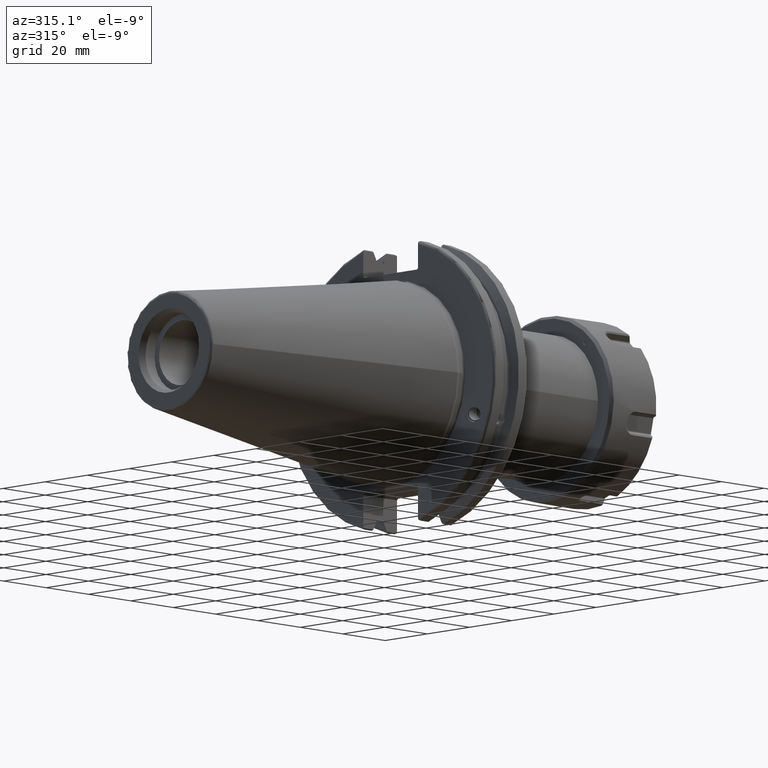
[diagram: clean part render]
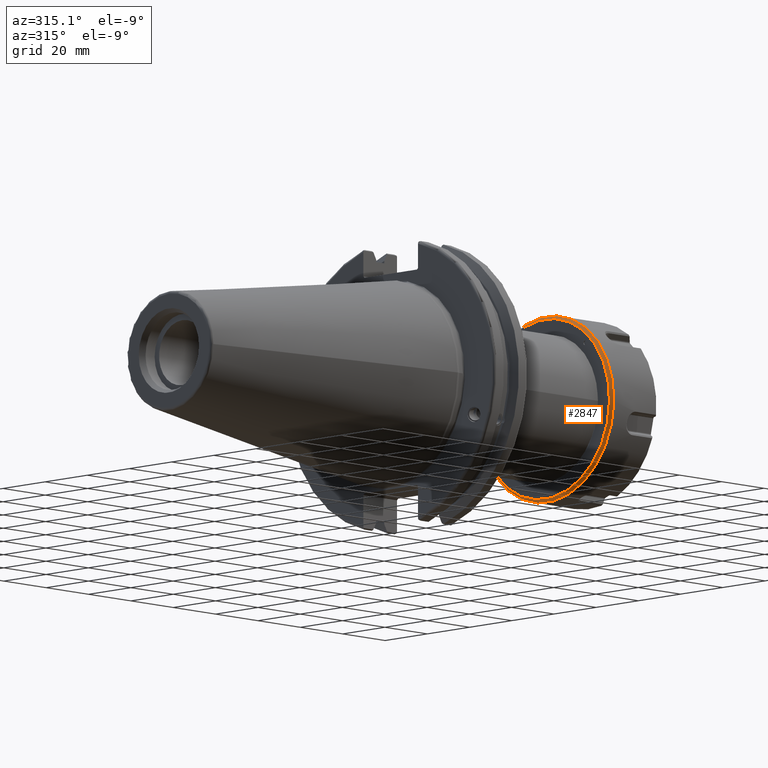
[diagram: same view with one face highlighted and labeled with its STEP entity id]
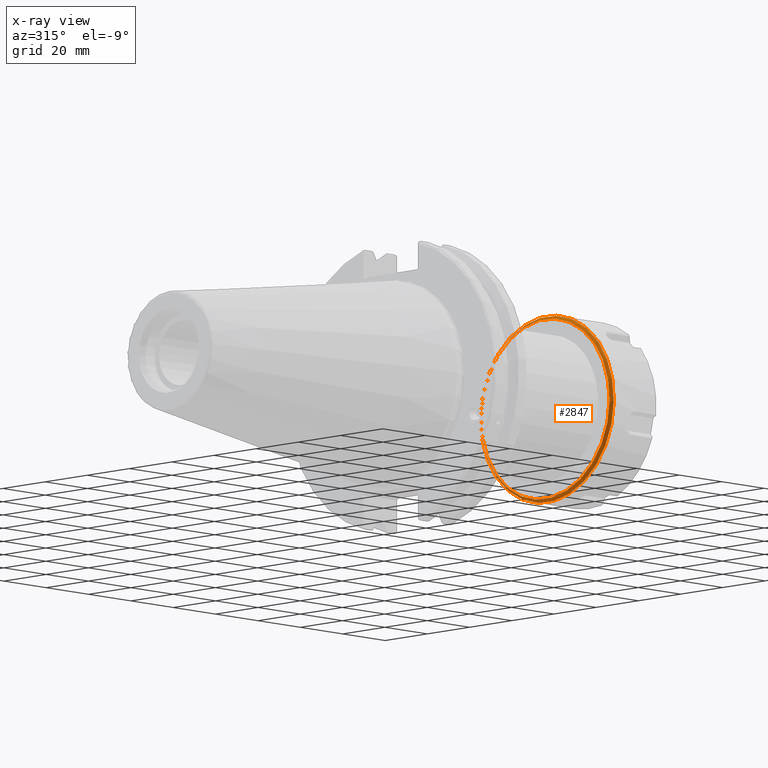
[diagram: x-ray of the same camera — body ghosted, the highlighted face saturated]
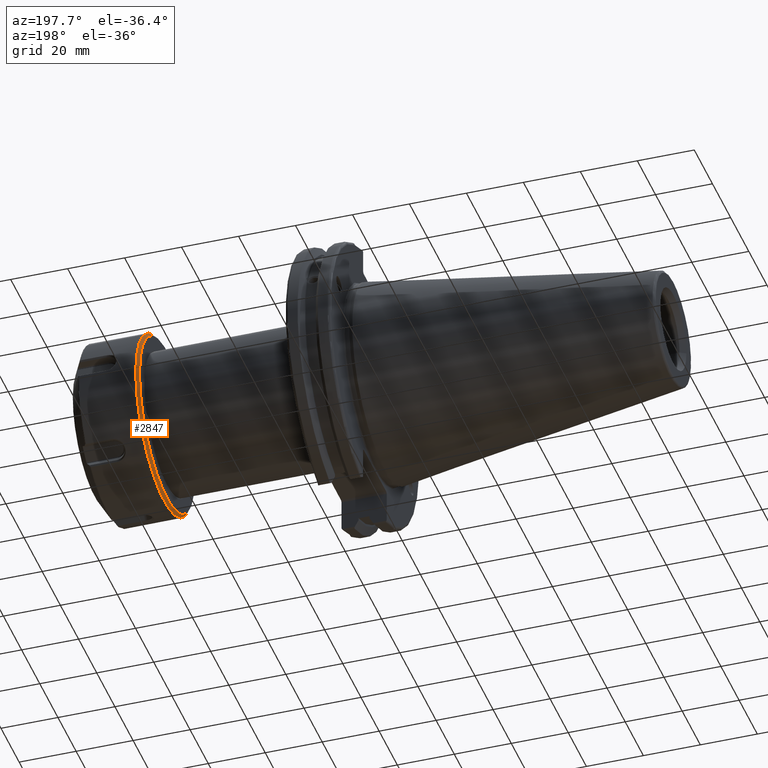
[diagram: same view with one face highlighted and labeled with its STEP entity id]
A machine part, auxiliary view. The second image highlights one B-rep face of the part: STEP entity #2847.
The next image is the same camera in x-ray: the body ghosted, the highlighted face saturated — about 4% of this face is hidden behind the body in this view.
A second angle (auxiliary view) of the same face is appended — the face is thin or edge-on in the first view.
In plain terms, the highlighted conical surface has half-angle 45 deg.
Its self-contained STEP definition (entity closure, byte-faithful):
#406=FACE_OUTER_BOUND('',#596,.T.);
#596=EDGE_LOOP('',(#2324,#2325,#2326,#2327));
#776=LINE('',#5025,#952);
#952=VECTOR('',#3736,30.9999999999);
#1109=CIRCLE('',#3166,30.5);
#1112=CIRCLE('',#3170,31.5);
#1316=VERTEX_POINT('',#5016);
#1319=VERTEX_POINT('',#5023);
#1668=EDGE_CURVE('',#1316,#1316,#1109,.T.);
#1671=EDGE_CURVE('',#1319,#1319,#1112,.T.);
#1672=EDGE_CURVE('',#1319,#1316,#776,.T.);
#2324=ORIENTED_EDGE('',*,*,#1671,.T.);
#2325=ORIENTED_EDGE('',*,*,#1672,.T.);
#2326=ORIENTED_EDGE('',*,*,#1668,.F.);
#2327=ORIENTED_EDGE('',*,*,#1672,.F.);
#2750=CONICAL_SURFACE('',#3169,30.9999999999,0.785398163397448);
#2847=ADVANCED_FACE('',(#406),#2750,.T.);
#3166=AXIS2_PLACEMENT_3D('',#5017,#3726,#3727);
#3169=AXIS2_PLACEMENT_3D('',#5022,#3732,#3733);
#3170=AXIS2_PLACEMENT_3D('',#5024,#3734,#3735);
#3726=DIRECTION('center_axis',(-1.,0.,0.));
#3727=DIRECTION('ref_axis',(0.,0.,1.));
#3732=DIRECTION('center_axis',(1.,0.,0.));
#3733=DIRECTION('ref_axis',(0.,0.,-1.));
#3734=DIRECTION('center_axis',(-1.,0.,0.));
#3735=DIRECTION('ref_axis',(0.,0.,1.));
#3736=DIRECTION('',(-0.707106781186548,8.65956056235493E-17,-0.707106781186548));
#5016=CARTESIAN_POINT('',(-12.75,-3.73517273739943E-15,30.5));
#5017=CARTESIAN_POINT('Origin',(-12.75,0.,0.));
#5022=CARTESIAN_POINT('Origin',(-12.2500000001,0.,0.));
#5023=CARTESIAN_POINT('',(-11.75,-3.85763741731416E-15,31.5));
#5024=CARTESIAN_POINT('Origin',(-11.75,0.,0.));
#5025=CARTESIAN_POINT('',(-12.2500000001,-3.79640507734455E-15,30.9999999999));